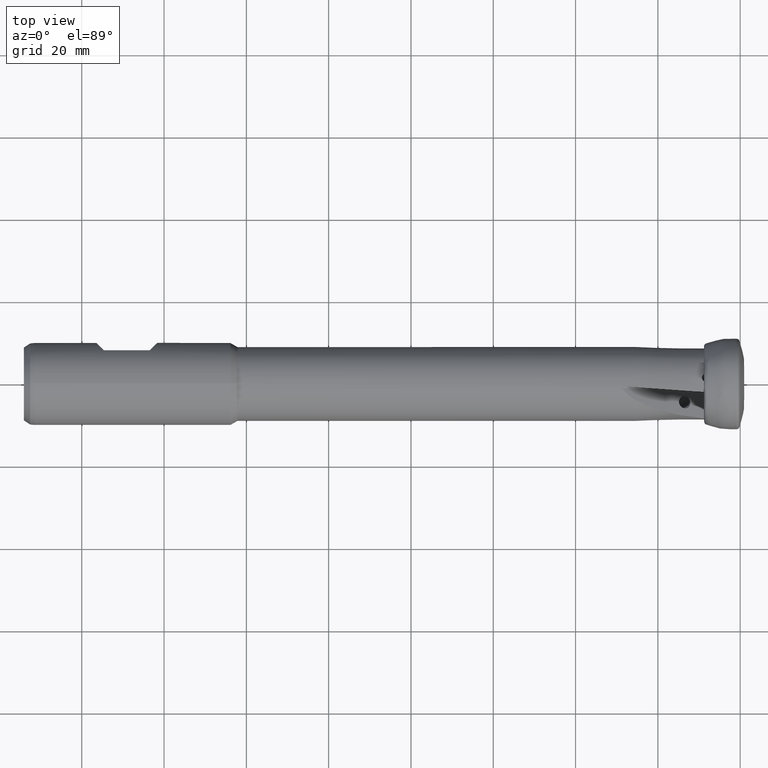
[diagram: clean part render]
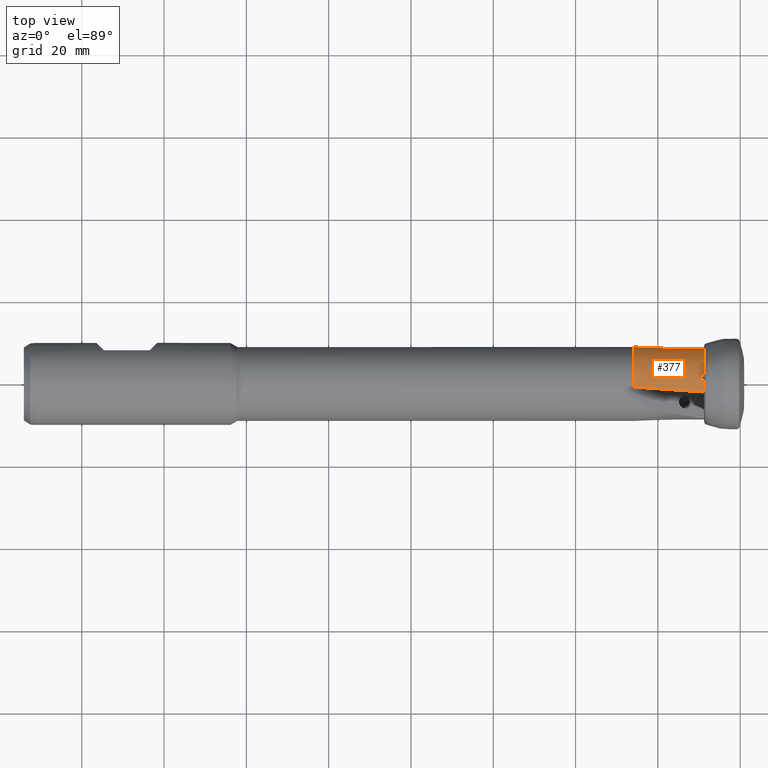
[diagram: same view with one face highlighted and labeled with its STEP entity id]
A machine part, top view. The second image highlights one B-rep face of the part: STEP entity #377.
In plain terms, the highlighted conical surface has half-angle 1.259 deg.
Its self-contained STEP definition (entity closure, byte-faithful):
#5 = CARTESIAN_POINT ( 'NONE',  ( -14.43659615482924800, -1.697087980396272600, 8.594357406676120800 ) ) ;
#32 = CARTESIAN_POINT ( 'NONE',  ( -8.794169598414297800, 0.5485828175346403300, 8.608889851539666800 ) ) ;
#40 = CARTESIAN_POINT ( 'NONE',  ( -8.959957170153154800, -1.820069450899581800, 8.439942492922110500 ) ) ;
#99 = DIRECTION ( 'NONE',  ( 1.000000000000000000, -0.0000000000000000000, -0.0000000000000000000 ) ) ;
#126 = VERTEX_POINT ( 'NONE', #1135 ) ;
#136 = ORIENTED_EDGE ( 'NONE', *, *, #1161, .F. ) ;
#172 = ORIENTED_EDGE ( 'NONE', *, *, #2699, .F. ) ;
#191 = CONICAL_SURFACE ( 'NONE', #794, 8.609999999999999400, 0.02196829629272690300 ) ;
#226 = CARTESIAN_POINT ( 'NONE',  ( -9.038898121617224400, -2.074531795692470500, 8.378725703206246300 ) ) ;
#230 = VERTEX_POINT ( 'NONE', #2355 ) ;
#252 = CARTESIAN_POINT ( 'NONE',  ( -8.949120021174346500, 2.206948806728304300, 8.343284308291403700 ) ) ;
#255 = DIRECTION ( 'NONE',  ( 0.0000000000000000000, 0.0000000000000000000, 1.000000000000000000 ) ) ;
#262 = ORIENTED_EDGE ( 'NONE', *, *, #875, .T. ) ;
#283 = ORIENTED_EDGE ( 'NONE', *, *, #1634, .T. ) ;
#314 = CARTESIAN_POINT ( 'NONE',  ( -15.66697050941586000, 7.886262953260693800, -4.725169872093418100 ) ) ;
#377 = ADVANCED_FACE ( 'NONE', ( #1977 ), #191, .T. ) ;
#421 = CARTESIAN_POINT ( 'NONE',  ( -25.80000000000000100, 0.0000000000000000000, 0.0000000000000000000 ) ) ;
#428 = AXIS2_PLACEMENT_3D ( 'NONE', #2109, #823, #2314 ) ;
#432 = CARTESIAN_POINT ( 'NONE',  ( -8.794169598414296000, -1.304087664127248700, 8.527208391256033700 ) ) ;
#441 = CARTESIAN_POINT ( 'NONE',  ( -20.03129133128358000, -1.305868782911164800, 8.786591144688126000 ) ) ;
#469 = CARTESIAN_POINT ( 'NONE',  ( -9.326575159606667500, 1.247926231476437000, 8.549325721681205100 ) ) ;
#506 =( BOUNDED_CURVE ( )  B_SPLINE_CURVE ( 3, ( #226, #5, #441, #1935 ),
 .UNSPECIFIED., .F., .T. ) 
 B_SPLINE_CURVE_WITH_KNOTS ( ( 4, 4 ),
 ( 4.170666904502862600, 4.298878013540572400 ),
 .UNSPECIFIED. ) 
 CURVE ( )  GEOMETRIC_REPRESENTATION_ITEM ( )  RATIONAL_B_SPLINE_CURVE ( ( 1.000000000000000000, 0.9986306283449103400, 0.9986306283449103400, 1.000000000000000000 ) ) 
 REPRESENTATION_ITEM ( '' )  );
#523 = CIRCLE ( 'NONE', #559, 8.626350768641216900 ) ;
#539 = EDGE_LOOP ( 'NONE', ( #2721, #2419, #283, #172, #1546, #136, #262 ) ) ;
#559 = AXIS2_PLACEMENT_3D ( 'NONE', #1539, #2586, #1719 ) ;
#662 = DIRECTION ( 'NONE',  ( -1.000000000000000000, 0.0000000000000000000, 0.0000000000000000000 ) ) ;
#668 = CARTESIAN_POINT ( 'NONE',  ( -9.268039297501998100, 1.778962005614168600, 8.452998069570306000 ) ) ;
#768 = EDGE_CURVE ( 'NONE', #1641, #2401, #1697, .T. ) ;
#784 =( BOUNDED_CURVE ( )  B_SPLINE_CURVE ( 3, ( #2158, #40, #1113, #873 ),
 .UNSPECIFIED., .F., .T. ) 
 B_SPLINE_CURVE_WITH_KNOTS ( ( 4, 4 ),
 ( 0.9150209243873066400, 1.006416970904364200 ),
 .UNSPECIFIED. ) 
 CURVE ( )  GEOMETRIC_REPRESENTATION_ITEM ( )  RATIONAL_B_SPLINE_CURVE ( ( 1.000000000000000000, 0.9993040180215402300, 0.9993040180215402300, 1.000000000000000000 ) ) 
 REPRESENTATION_ITEM ( '' )  );
#794 = AXIS2_PLACEMENT_3D ( 'NONE', #1938, #662, #255 ) ;
#799 = B_SPLINE_CURVE_WITH_KNOTS ( 'NONE', 3,
 ( #32, #2581, #889, #2371, #469, #1958, #668, #1525, #252, #1739 ),
 .UNSPECIFIED., .F., .F.,
 ( 4, 2, 2, 2, 4 ),
 ( 0.0007623013540470798000, 0.001301733715351631900, 0.001841166076656183800, 0.002380598437960735600, 0.002920030799265287700 ),
 .UNSPECIFIED. ) ;
#823 = DIRECTION ( 'NONE',  ( 1.000000000000000000, 1.225122446274729400E-016, -0.0000000000000000000 ) ) ;
#825 = VERTEX_POINT ( 'NONE', #1973 ) ;
#873 = CARTESIAN_POINT ( 'NONE',  ( -8.794169598414296000, -1.304087664127248700, 8.527208391256033700 ) ) ;
#875 = EDGE_CURVE ( 'NONE', #126, #825, #799, .T. ) ;
#889 = CARTESIAN_POINT ( 'NONE',  ( -9.091415794014862300, 0.7585863784920631200, 8.600879803764861700 ) ) ;
#1012 = EDGE_CURVE ( 'NONE', #230, #2119, #784, .T. ) ;
#1016 = CARTESIAN_POINT ( 'NONE',  ( -8.794169598414299600, 8.383636464192212800, -2.031887600214040500 ) ) ;
#1081 = CARTESIAN_POINT ( 'NONE',  ( -25.80000000000000100, 3.806648132895587900, -8.155331384580421200 ) ) ;
#1113 = CARTESIAN_POINT ( 'NONE',  ( -8.878324180662657400, -1.563075877482175100, 8.489471193355006700 ) ) ;
#1135 = CARTESIAN_POINT ( 'NONE',  ( -8.794169598414297800, 0.5485828175346403300, 8.608889851539666800 ) ) ;
#1161 = EDGE_CURVE ( 'NONE', #126, #2119, #523, .T. ) ;
#1369 = CIRCLE ( 'NONE', #1671, 8.999999999999996400 ) ;
#1407 = CARTESIAN_POINT ( 'NONE',  ( -25.80000000000000400, -0.9024813766770126700, 8.954637198946260300 ) ) ;
#1492 = VERTEX_POINT ( 'NONE', #1407 ) ;
#1525 = CARTESIAN_POINT ( 'NONE',  ( -9.081332998849550400, 2.081391611823659700, 8.379430001204680100 ) ) ;
#1539 = CARTESIAN_POINT ( 'NONE',  ( -8.794169598414297800, -2.779087213305302800E-015, 0.0000000000000000000 ) ) ;
#1546 = ORIENTED_EDGE ( 'NONE', *, *, #1012, .T. ) ;
#1575 = CIRCLE ( 'NONE', #428, 8.626350768641216900 ) ;
#1588 = DIRECTION ( 'NONE',  ( 0.0000000000000000000, 0.0000000000000000000, -1.000000000000000000 ) ) ;
#1634 = EDGE_CURVE ( 'NONE', #1641, #1492, #1369, .T. ) ;
#1641 = VERTEX_POINT ( 'NONE', #1805 ) ;
#1671 = AXIS2_PLACEMENT_3D ( 'NONE', #421, #99, #1588 ) ;
#1697 =( BOUNDED_CURVE ( )  B_SPLINE_CURVE ( 3, ( #1081, #2216, #314, #2643 ),
 .UNSPECIFIED., .F., .F. ) 
 B_SPLINE_CURVE_WITH_KNOTS ( ( 4, 4 ),
 ( 0.6286591539387579300, 1.548351485323647500 ),
 .UNSPECIFIED. ) 
 CURVE ( )  GEOMETRIC_REPRESENTATION_ITEM ( )  RATIONAL_B_SPLINE_CURVE ( ( 1.000000000000000000, 0.9307471875815618300, 0.9307471875815618300, 1.000000000000000000 ) ) 
 REPRESENTATION_ITEM ( '' )  );
#1719 = DIRECTION ( 'NONE',  ( -2.010958657376800400E-016, 1.000000000000000000, 0.0000000000000000000 ) ) ;
#1739 = CARTESIAN_POINT ( 'NONE',  ( -8.794169598414294200, 2.294074867546472200, 8.315716931553682300 ) ) ;
#1805 = CARTESIAN_POINT ( 'NONE',  ( -25.80000000000000100, 3.806648132895587900, -8.155331384580421200 ) ) ;
#1935 = CARTESIAN_POINT ( 'NONE',  ( -25.80000000000000400, -0.9024813766770126700, 8.954637198946260300 ) ) ;
#1938 = CARTESIAN_POINT ( 'NONE',  ( -8.050000000000041600, 0.0000000000000000000, 0.0000000000000000000 ) ) ;
#1958 = CARTESIAN_POINT ( 'NONE',  ( -9.320965559269771100, 1.602997295426207700, 8.489791547884555800 ) ) ;
#1973 = CARTESIAN_POINT ( 'NONE',  ( -8.794169598414294200, 2.294074867546472200, 8.315716931553682300 ) ) ;
#1977 = FACE_OUTER_BOUND ( 'NONE', #539, .T. ) ;
#2010 = EDGE_CURVE ( 'NONE', #2401, #825, #1575, .T. ) ;
#2109 = CARTESIAN_POINT ( 'NONE',  ( -8.794169598414297800, -2.779087213305302800E-015, 0.0000000000000000000 ) ) ;
#2119 = VERTEX_POINT ( 'NONE', #432 ) ;
#2158 = CARTESIAN_POINT ( 'NONE',  ( -9.038898121617224400, -2.074531795692470500, 8.378725703206246300 ) ) ;
#2216 = CARTESIAN_POINT ( 'NONE',  ( -21.75735703917925100, 6.247082306297763000, -6.918190657281941800 ) ) ;
#2314 = DIRECTION ( 'NONE',  ( -2.010958657376800400E-016, 1.000000000000000000, 0.0000000000000000000 ) ) ;
#2355 = CARTESIAN_POINT ( 'NONE',  ( -9.038898121617224400, -2.074531795692470500, 8.378725703206246300 ) ) ;
#2371 = CARTESIAN_POINT ( 'NONE',  ( -9.278161530004677400, 1.066727043727627500, 8.572254131034382500 ) ) ;
#2401 = VERTEX_POINT ( 'NONE', #1016 ) ;
#2419 = ORIENTED_EDGE ( 'NONE', *, *, #768, .F. ) ;
#2581 = CARTESIAN_POINT ( 'NONE',  ( -8.954514571532632400, 0.6317617663925815300, 8.607119671884136700 ) ) ;
#2586 = DIRECTION ( 'NONE',  ( 1.000000000000000000, 1.225122446274729400E-016, -0.0000000000000000000 ) ) ;
#2643 = CARTESIAN_POINT ( 'NONE',  ( -8.794169598414299600, 8.383636464192212800, -2.031887600214040500 ) ) ;
#2699 = EDGE_CURVE ( 'NONE', #230, #1492, #506, .T. ) ;
#2721 = ORIENTED_EDGE ( 'NONE', *, *, #2010, .F. ) ;